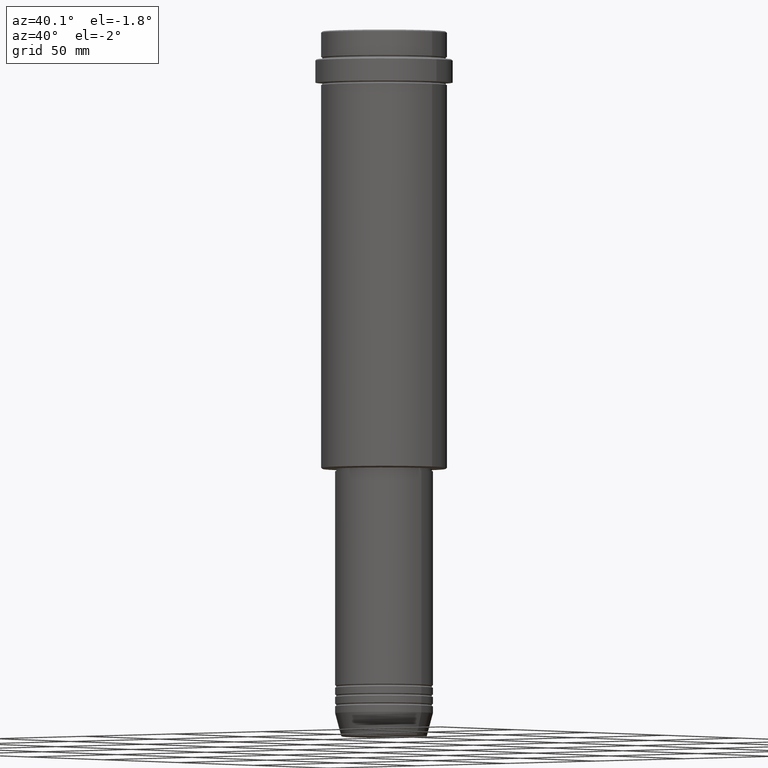
[diagram: clean part render]
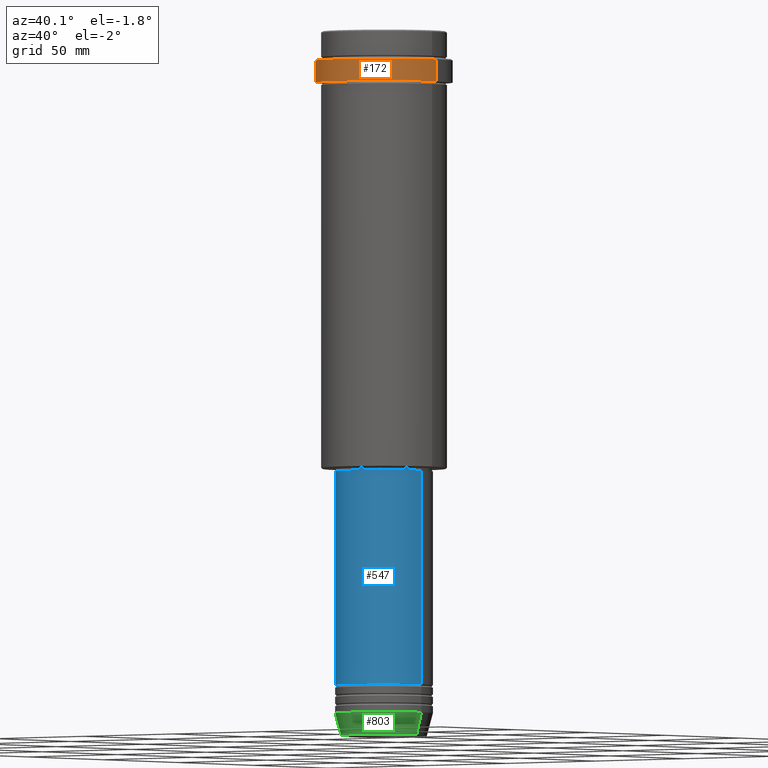
[diagram: same view with three faces highlighted in distinct colors, each labeled with its STEP entity id]
A machine part, auxiliary view with three faces highlighted in distinct colors.
Their STEP definitions:

[orange] entity #172 — the highlighted cylindrical surface (partial cylindrical patch) has radius 29.5 mm, axis along (-0, -0, 1).
#46 = CIRCLE ( 'NONE', #356, 29.50000000000000000 ) ;
#70 = CARTESIAN_POINT ( 'NONE',  ( 29.50000000000000000, 0.000000000000000000, -12.49999999999994849 ) ) ;
#107 = LINE ( 'NONE', #544, #361 ) ;
#172 = ADVANCED_FACE ( 'NONE', ( #366 ), #1289, .T. ) ;
#210 = DIRECTION ( 'NONE',  ( -0.000000000000000000, -0.000000000000000000, 1.000000000000000000 ) ) ;
#310 = EDGE_CURVE ( 'NONE', #1208, #1203, #46, .T. ) ;
#317 = ORIENTED_EDGE ( 'NONE', *, *, #310, .T. ) ;
#336 = VERTEX_POINT ( 'NONE', #1146 ) ;
#356 = AXIS2_PLACEMENT_3D ( 'NONE', #1167, #477, #611 ) ;
#361 = VECTOR ( 'NONE', #445, 1000.000000000000000 ) ;
#366 = FACE_OUTER_BOUND ( 'NONE', #871, .T. ) ;
#445 = DIRECTION ( 'NONE',  ( -0.000000000000000000, -0.000000000000000000, 1.000000000000000000 ) ) ;
#477 = DIRECTION ( 'NONE',  ( 0.000000000000000000, 0.000000000000000000, -1.000000000000000000 ) ) ;
#479 = VERTEX_POINT ( 'NONE', #1116 ) ;
#484 = CARTESIAN_POINT ( 'NONE',  ( -29.50000000000000000, 3.612708057484691604E-15, 0.000000000000000000 ) ) ;
#516 = CIRCLE ( 'NONE', #768, 29.49999999999999645 ) ;
#523 = CARTESIAN_POINT ( 'NONE',  ( 0.000000000000000000, 0.000000000000000000, -22.00000000000000711 ) ) ;
#544 = CARTESIAN_POINT ( 'NONE',  ( 29.50000000000000000, 0.000000000000000000, 0.000000000000000000 ) ) ;
#587 = EDGE_CURVE ( 'NONE', #336, #479, #516, .T. ) ;
#611 = DIRECTION ( 'NONE',  ( 1.000000000000000000, 0.000000000000000000, 0.000000000000000000 ) ) ;
#619 = DIRECTION ( 'NONE',  ( -0.000000000000000000, -0.000000000000000000, 1.000000000000000000 ) ) ;
#720 = LINE ( 'NONE', #484, #1127 ) ;
#726 = ORIENTED_EDGE ( 'NONE', *, *, #974, .F. ) ;
#755 = DIRECTION ( 'NONE',  ( -0.000000000000000000, -0.000000000000000000, 1.000000000000000000 ) ) ;
#768 = AXIS2_PLACEMENT_3D ( 'NONE', #523, #755, #1204 ) ;
#871 = EDGE_LOOP ( 'NONE', ( #726, #1148, #1198, #317 ) ) ;
#967 = CARTESIAN_POINT ( 'NONE',  ( 0.000000000000000000, 0.000000000000000000, 0.000000000000000000 ) ) ;
#974 = EDGE_CURVE ( 'NONE', #336, #1203, #720, .T. ) ;
#1079 = CARTESIAN_POINT ( 'NONE',  ( -29.50000000000000000, 3.612708057484691604E-15, -12.49999999999994849 ) ) ;
#1098 = AXIS2_PLACEMENT_3D ( 'NONE', #967, #619, #1192 ) ;
#1116 = CARTESIAN_POINT ( 'NONE',  ( 29.49999999999999645, 0.000000000000000000, -22.00000000000000711 ) ) ;
#1127 = VECTOR ( 'NONE', #210, 1000.000000000000000 ) ;
#1146 = CARTESIAN_POINT ( 'NONE',  ( -29.49999999999999645, 3.612708057484690815E-15, -22.00000000000000711 ) ) ;
#1148 = ORIENTED_EDGE ( 'NONE', *, *, #587, .T. ) ;
#1167 = CARTESIAN_POINT ( 'NONE',  ( 0.000000000000000000, 0.000000000000000000, -12.49999999999994849 ) ) ;
#1192 = DIRECTION ( 'NONE',  ( 1.000000000000000000, 0.000000000000000000, 0.000000000000000000 ) ) ;
#1198 = ORIENTED_EDGE ( 'NONE', *, *, #1363, .T. ) ;
#1203 = VERTEX_POINT ( 'NONE', #1079 ) ;
#1204 = DIRECTION ( 'NONE',  ( 1.000000000000000000, 0.000000000000000000, 0.000000000000000000 ) ) ;
#1208 = VERTEX_POINT ( 'NONE', #70 ) ;
#1289 = CYLINDRICAL_SURFACE ( 'NONE', #1098, 29.50000000000000000 ) ;
#1363 = EDGE_CURVE ( 'NONE', #479, #1208, #107, .T. ) ;

[blue] entity #547 — the highlighted cylindrical surface (partial cylindrical patch) has radius 21 mm, axis along (-0, -0, 1).
#8 = EDGE_CURVE ( 'NONE', #1106, #436, #739, .T. ) ;
#123 = EDGE_LOOP ( 'NONE', ( #192, #291, #1350, #238 ) ) ;
#131 = LINE ( 'NONE', #567, #1211 ) ;
#192 = ORIENTED_EDGE ( 'NONE', *, *, #492, .F. ) ;
#220 = CARTESIAN_POINT ( 'NONE',  ( 21.00000000000000000, 0.000000000000000000, -280.9999999999998863 ) ) ;
#230 = DIRECTION ( 'NONE',  ( -0.000000000000000000, -0.000000000000000000, 1.000000000000000000 ) ) ;
#235 = DIRECTION ( 'NONE',  ( -0.000000000000000000, -0.000000000000000000, 1.000000000000000000 ) ) ;
#238 = ORIENTED_EDGE ( 'NONE', *, *, #427, .F. ) ;
#241 = CARTESIAN_POINT ( 'NONE',  ( -21.00000000000000000, 2.571758278209441661E-15, -280.9999999999998863 ) ) ;
#243 = AXIS2_PLACEMENT_3D ( 'NONE', #1237, #235, #573 ) ;
#291 = ORIENTED_EDGE ( 'NONE', *, *, #8, .T. ) ;
#341 = DIRECTION ( 'NONE',  ( 1.000000000000000000, 0.000000000000000000, 0.000000000000000000 ) ) ;
#367 = FACE_OUTER_BOUND ( 'NONE', #123, .T. ) ;
#427 = EDGE_CURVE ( 'NONE', #1031, #1016, #1317, .T. ) ;
#436 = VERTEX_POINT ( 'NONE', #220 ) ;
#492 = EDGE_CURVE ( 'NONE', #1106, #1031, #131, .T. ) ;
#547 = ADVANCED_FACE ( 'NONE', ( #367 ), #561, .T. ) ;
#550 = CARTESIAN_POINT ( 'NONE',  ( -21.00000000000000000, 2.571758278209441661E-15, -188.9999999999999147 ) ) ;
#561 = CYLINDRICAL_SURFACE ( 'NONE', #243, 21.00000000000000000 ) ;
#567 = CARTESIAN_POINT ( 'NONE',  ( -21.00000000000000000, 2.571758278209441661E-15, 0.000000000000000000 ) ) ;
#573 = DIRECTION ( 'NONE',  ( 1.000000000000000000, 0.000000000000000000, 0.000000000000000000 ) ) ;
#634 = DIRECTION ( 'NONE',  ( -0.000000000000000000, -0.000000000000000000, 1.000000000000000000 ) ) ;
#733 = DIRECTION ( 'NONE',  ( 1.000000000000000000, 0.000000000000000000, 0.000000000000000000 ) ) ;
#739 = CIRCLE ( 'NONE', #905, 21.00000000000000000 ) ;
#886 = CARTESIAN_POINT ( 'NONE',  ( 0.000000000000000000, 0.000000000000000000, -280.9999999999998863 ) ) ;
#905 = AXIS2_PLACEMENT_3D ( 'NONE', #886, #1331, #341 ) ;
#919 = CARTESIAN_POINT ( 'NONE',  ( 21.00000000000000000, 0.000000000000000000, 0.000000000000000000 ) ) ;
#1001 = CARTESIAN_POINT ( 'NONE',  ( 21.00000000000000000, 0.000000000000000000, -188.9999999999999147 ) ) ;
#1012 = LINE ( 'NONE', #919, #1283 ) ;
#1016 = VERTEX_POINT ( 'NONE', #1001 ) ;
#1031 = VERTEX_POINT ( 'NONE', #550 ) ;
#1106 = VERTEX_POINT ( 'NONE', #241 ) ;
#1159 = EDGE_CURVE ( 'NONE', #436, #1016, #1012, .T. ) ;
#1211 = VECTOR ( 'NONE', #230, 1000.000000000000000 ) ;
#1237 = CARTESIAN_POINT ( 'NONE',  ( 0.000000000000000000, 0.000000000000000000, 0.000000000000000000 ) ) ;
#1255 = DIRECTION ( 'NONE',  ( -0.000000000000000000, -0.000000000000000000, 1.000000000000000000 ) ) ;
#1283 = VECTOR ( 'NONE', #1255, 1000.000000000000000 ) ;
#1299 = CARTESIAN_POINT ( 'NONE',  ( 0.000000000000000000, 0.000000000000000000, -188.9999999999999147 ) ) ;
#1317 = CIRCLE ( 'NONE', #1371, 21.00000000000000000 ) ;
#1331 = DIRECTION ( 'NONE',  ( -0.000000000000000000, -0.000000000000000000, 1.000000000000000000 ) ) ;
#1350 = ORIENTED_EDGE ( 'NONE', *, *, #1159, .T. ) ;
#1371 = AXIS2_PLACEMENT_3D ( 'NONE', #1299, #634, #733 ) ;

[green] entity #803 — the highlighted conical surface has half-angle 15 deg.
#39 = CARTESIAN_POINT ( 'NONE',  ( -18.41980749484383750, 2.413767053578267458E-15, -302.6294095225512137 ) ) ;
#92 = DIRECTION ( 'NONE',  ( 0.2588190451025211836, 0.000000000000000000, 0.9659258262890680902 ) ) ;
#98 = VECTOR ( 'NONE', #92, 1000.000000000000114 ) ;
#190 = DIRECTION ( 'NONE',  ( -0.000000000000000000, -0.000000000000000000, 1.000000000000000000 ) ) ;
#267 = AXIS2_PLACEMENT_3D ( 'NONE', #725, #190, #1184 ) ;
#274 = DIRECTION ( 'NONE',  ( -0.000000000000000000, -0.000000000000000000, 1.000000000000000000 ) ) ;
#307 = VERTEX_POINT ( 'NONE', #505 ) ;
#368 = EDGE_LOOP ( 'NONE', ( #1068, #709, #928, #497 ) ) ;
#429 = CARTESIAN_POINT ( 'NONE',  ( 0.000000000000000000, 0.000000000000000000, -302.6294095225512137 ) ) ;
#434 = DIRECTION ( 'NONE',  ( 1.000000000000000000, 0.000000000000000000, 0.000000000000000000 ) ) ;
#488 = CARTESIAN_POINT ( 'NONE',  ( 0.000000000000000000, 0.000000000000000000, -293.0000000000000000 ) ) ;
#497 = ORIENTED_EDGE ( 'NONE', *, *, #1201, .F. ) ;
#505 = CARTESIAN_POINT ( 'NONE',  ( -21.00000000000000000, 2.571758278209441661E-15, -293.0000000000000000 ) ) ;
#546 = VERTEX_POINT ( 'NONE', #1246 ) ;
#591 = EDGE_CURVE ( 'NONE', #625, #938, #1282, .T. ) ;
#599 = DIRECTION ( 'NONE',  ( 1.000000000000000000, 0.000000000000000000, 0.000000000000000000 ) ) ;
#601 = CARTESIAN_POINT ( 'NONE',  ( 18.41980749484383750, 0.000000000000000000, -302.6294095225512137 ) ) ;
#625 = VERTEX_POINT ( 'NONE', #39 ) ;
#638 = DIRECTION ( 'NONE',  ( -0.000000000000000000, -0.000000000000000000, 1.000000000000000000 ) ) ;
#667 = DIRECTION ( 'NONE',  ( -0.2588190451025211836, 3.169619151431770488E-17, 0.9659258262890680902 ) ) ;
#709 = ORIENTED_EDGE ( 'NONE', *, *, #591, .T. ) ;
#725 = CARTESIAN_POINT ( 'NONE',  ( 0.000000000000000000, 0.000000000000000000, -293.0000000000000000 ) ) ;
#772 = AXIS2_PLACEMENT_3D ( 'NONE', #488, #274, #599 ) ;
#790 = VECTOR ( 'NONE', #667, 1000.000000000000114 ) ;
#800 = EDGE_CURVE ( 'NONE', #938, #546, #1340, .T. ) ;
#803 = ADVANCED_FACE ( 'NONE', ( #1170 ), #1054, .T. ) ;
#844 = EDGE_CURVE ( 'NONE', #625, #307, #992, .T. ) ;
#889 = CARTESIAN_POINT ( 'NONE',  ( -21.00000000000000000, 2.571758278209441661E-15, -293.0000000000000000 ) ) ;
#928 = ORIENTED_EDGE ( 'NONE', *, *, #800, .T. ) ;
#938 = VERTEX_POINT ( 'NONE', #601 ) ;
#992 = LINE ( 'NONE', #889, #790 ) ;
#1006 = AXIS2_PLACEMENT_3D ( 'NONE', #429, #638, #434 ) ;
#1054 = CONICAL_SURFACE ( 'NONE', #267, 21.00000000000000000, 0.2617993877991499074 ) ;
#1068 = ORIENTED_EDGE ( 'NONE', *, *, #844, .F. ) ;
#1137 = CARTESIAN_POINT ( 'NONE',  ( 21.00000000000000000, 0.000000000000000000, -293.0000000000000000 ) ) ;
#1170 = FACE_OUTER_BOUND ( 'NONE', #368, .T. ) ;
#1184 = DIRECTION ( 'NONE',  ( 1.000000000000000000, 0.000000000000000000, 0.000000000000000000 ) ) ;
#1201 = EDGE_CURVE ( 'NONE', #307, #546, #1352, .T. ) ;
#1246 = CARTESIAN_POINT ( 'NONE',  ( 21.00000000000000000, 0.000000000000000000, -293.0000000000000000 ) ) ;
#1282 = CIRCLE ( 'NONE', #1006, 18.41980749484383750 ) ;
#1340 = LINE ( 'NONE', #1137, #98 ) ;
#1352 = CIRCLE ( 'NONE', #772, 21.00000000000000000 ) ;